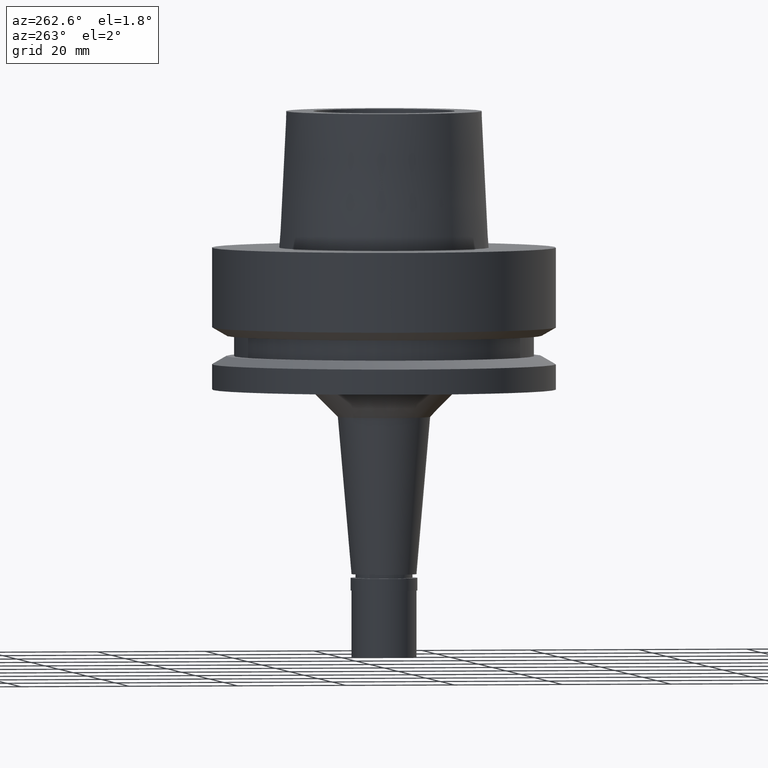
[diagram: clean part render]
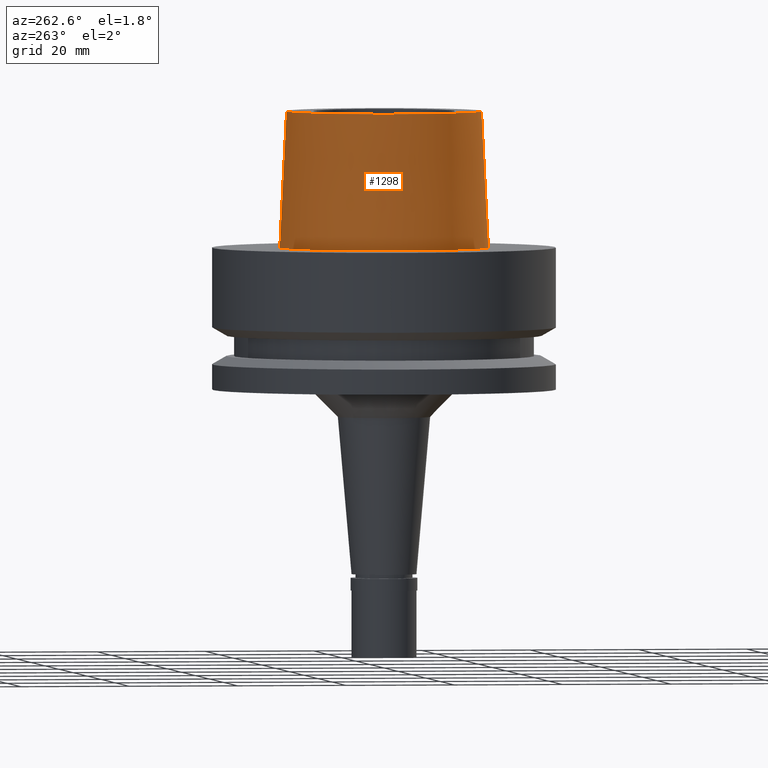
[diagram: same view with one face highlighted and labeled with its STEP entity id]
A machine part, auxiliary view. The second image highlights one B-rep face of the part: STEP entity #1298.
In plain terms, the highlighted conical surface has half-angle 2.862 deg.
Its self-contained STEP definition (entity closure, byte-faithful):
#34 = DIRECTION ( 'NONE',  ( 0.0000000000000000000, 0.0000000000000000000, 1.000000000000000000 ) ) ;
#61 = LINE ( 'NONE', #1705, #290 ) ;
#93 = FACE_OUTER_BOUND ( 'NONE', #2171, .T. ) ;
#174 = VERTEX_POINT ( 'NONE', #1682 ) ;
#269 = VERTEX_POINT ( 'NONE', #1361 ) ;
#290 = VECTOR ( 'NONE', #1516, 999.9999999999998863 ) ;
#309 = DIRECTION ( 'NONE',  ( 0.0000000000000000000, 0.0000000000000000000, -1.000000000000000000 ) ) ;
#313 = CARTESIAN_POINT ( 'NONE',  ( 0.0000000000000000000, 18.00000182882000033, 25.00000000000000000 ) ) ;
#332 = CARTESIAN_POINT ( 'NONE',  ( 0.0000000000000000000, 1.377727649040999975E-14, 25.00000000000000000 ) ) ;
#441 = CARTESIAN_POINT ( 'NONE',  ( 0.0000000000000000000, -18.00000182882000033, 25.00000000000000000 ) ) ;
#465 = CIRCLE ( 'NONE', #646, 18.00000182882000033 ) ;
#507 = VECTOR ( 'NONE', #1349, 999.9999999999998863 ) ;
#564 = DIRECTION ( 'NONE',  ( 0.0000000000000000000, -1.000000000000000000, 0.0000000000000000000 ) ) ;
#646 = AXIS2_PLACEMENT_3D ( 'NONE', #332, #2037, #564 ) ;
#697 = LINE ( 'NONE', #313, #507 ) ;
#700 = VERTEX_POINT ( 'NONE', #1458 ) ;
#735 = ORIENTED_EDGE ( 'NONE', *, *, #1399, .F. ) ;
#869 = DIRECTION ( 'NONE',  ( 0.0000000000000000000, 1.000000000000000000, 0.0000000000000000000 ) ) ;
#925 = CARTESIAN_POINT ( 'NONE',  ( 0.0000000000000000000, 1.377727649040999975E-14, 12.50000000000000000 ) ) ;
#1066 = CARTESIAN_POINT ( 'NONE',  ( 0.0000000000000000000, 1.377727649040999975E-14, 2.273736754432000254E-13 ) ) ;
#1298 = ADVANCED_FACE ( 'NONE', ( #93 ), #2665, .T. ) ;
#1343 = EDGE_CURVE ( 'NONE', #2374, #174, #465, .T. ) ;
#1349 = DIRECTION ( 'NONE',  ( 0.0000000000000000000, 0.04993752584486958745, -0.9987523434327917338 ) ) ;
#1353 = ORIENTED_EDGE ( 'NONE', *, *, #1505, .T. ) ;
#1361 = CARTESIAN_POINT ( 'NONE',  ( 0.0000000000000000000, -19.24999954280000125, 2.273736754432000254E-13 ) ) ;
#1399 = EDGE_CURVE ( 'NONE', #2374, #269, #61, .T. ) ;
#1458 = CARTESIAN_POINT ( 'NONE',  ( 0.0000000000000000000, 19.24999954280000125, 0.0000000000000000000 ) ) ;
#1505 = EDGE_CURVE ( 'NONE', #700, #269, #2443, .T. ) ;
#1516 = DIRECTION ( 'NONE',  ( 0.0000000000000000000, -0.04993752584486958745, -0.9987523434327917338 ) ) ;
#1587 = ORIENTED_EDGE ( 'NONE', *, *, #1343, .T. ) ;
#1682 = CARTESIAN_POINT ( 'NONE',  ( 0.0000000000000000000, 18.00000182882000033, 25.00000000000000000 ) ) ;
#1705 = CARTESIAN_POINT ( 'NONE',  ( 0.0000000000000000000, -18.00000182882000033, 25.00000000000000000 ) ) ;
#1872 = AXIS2_PLACEMENT_3D ( 'NONE', #1066, #34, #869 ) ;
#2027 = EDGE_CURVE ( 'NONE', #174, #700, #697, .T. ) ;
#2037 = DIRECTION ( 'NONE',  ( 0.0000000000000000000, 0.0000000000000000000, -1.000000000000000000 ) ) ;
#2171 = EDGE_LOOP ( 'NONE', ( #1353, #735, #1587, #2262 ) ) ;
#2262 = ORIENTED_EDGE ( 'NONE', *, *, #2027, .T. ) ;
#2374 = VERTEX_POINT ( 'NONE', #441 ) ;
#2443 = CIRCLE ( 'NONE', #1872, 19.24999954280000125 ) ;
#2557 = DIRECTION ( 'NONE',  ( 0.0000000000000000000, -1.000000000000000000, 0.0000000000000000000 ) ) ;
#2570 = AXIS2_PLACEMENT_3D ( 'NONE', #925, #309, #2557 ) ;
#2665 = CONICAL_SURFACE ( 'NONE', #2570, 18.62500068580999724, 0.04995830450907576964 ) ;